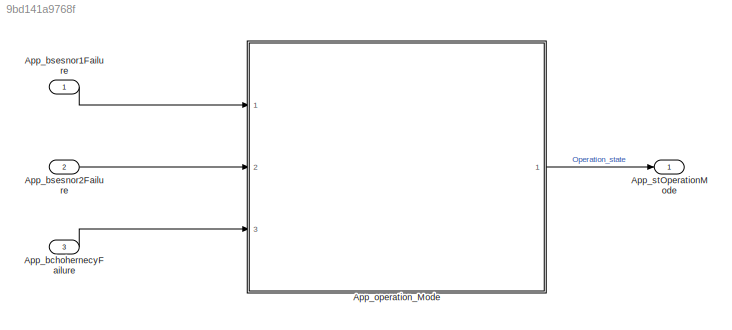
MODEL slx_9bd141a9768f
KIND model
CONFIG AbsTol = auto
CONFIG EnableMultiTasking = on
CONFIG FixedStep = 1e-3
CONFIG MaxStep = auto
CONFIG MinStep = auto
CONFIG RelTol = 1e-3
CONFIG SampleTimeConstraint = Unconstrained
CONFIG SolverName = FixedStepDiscrete
CONFIG StartTime = 0.0
CONFIG StopTime = 10.0
BLOCK [Inport] App_bchohernecyFailure
  Port = 3
BLOCK [Inport] App_bsesnor1Failure
BLOCK [Inport] App_bsesnor2Failure
  Port = 2
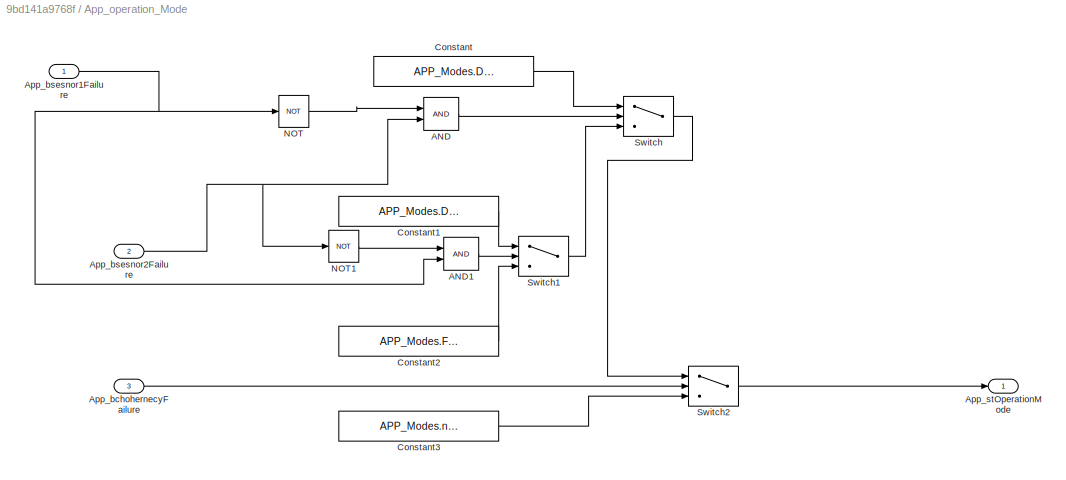
BLOCK [SubSystem] App_operation_Mode
  Ports = [3, 1]
  RequestExecContextInheritance = off
BLOCK [Logic] App_operation_Mode/AND
  AllPortsSameDT = off
  OutDataTypeStr = boolean
  Ports = [2, 1]
BLOCK [Logic] App_operation_Mode/AND1
  AllPortsSameDT = off
  OutDataTypeStr = boolean
  Ports = [2, 1]
BLOCK [Inport] App_operation_Mode/App_bchohernecyFailure
  Port = 3
BLOCK [Inport] App_operation_Mode/App_bsesnor1Failure
BLOCK [Inport] App_operation_Mode/App_bsesnor2Failure
  Port = 2
BLOCK [Outport] App_operation_Mode/App_stOperationMode
  OutDataTypeStr = Enum: APP_Modes
BLOCK [Constant] App_operation_Mode/Constant
  Value = APP_Modes.Downsensor_sens_1
BLOCK [Constant] App_operation_Mode/Constant1
  Value = APP_Modes.Downsensor_sens_2
BLOCK [Constant] App_operation_Mode/Constant2
  Value = APP_Modes.Failure
BLOCK [Constant] App_operation_Mode/Constant3
  Value = APP_Modes.normal
BLOCK [Logic] App_operation_Mode/NOT
  AllPortsSameDT = off
  Operator = NOT
  OutDataTypeStr = boolean
  Ports = [1, 1]
BLOCK [Logic] App_operation_Mode/NOT1
  AllPortsSameDT = off
  Operator = NOT
  OutDataTypeStr = boolean
  Ports = [1, 1]
BLOCK [Switch] App_operation_Mode/Switch
  Criteria = u2 ~= 0
  InputSameDT = off
  SaturateOnIntegerOverflow = off
BLOCK [Switch] App_operation_Mode/Switch1
  Criteria = u2 ~= 0
  InputSameDT = off
  SaturateOnIntegerOverflow = off
BLOCK [Switch] App_operation_Mode/Switch2
  Criteria = u2 ~= 0
  InputSameDT = off
  SaturateOnIntegerOverflow = off
BLOCK [Outport] App_stOperationMode
LINE App_bchohernecyFailure:1 -> App_operation_Mode:3
LINE App_bsesnor1Failure:1 -> App_operation_Mode:1
LINE App_bsesnor2Failure:1 -> App_operation_Mode:2
LINE App_operation_Mode/AND1:1 -> App_operation_Mode/Switch1:2
LINE App_operation_Mode/AND:1 -> App_operation_Mode/Switch:2
LINE App_operation_Mode/App_bchohernecyFailure:1 -> App_operation_Mode/Switch2:2
NET App_operation_Mode/App_bsesnor1Failure:1 -> App_operation_Mode/AND1:2, App_operation_Mode/NOT:1
NET App_operation_Mode/App_bsesnor2Failure:1 -> App_operation_Mode/AND:2, App_operation_Mode/NOT1:1
LINE App_operation_Mode/Constant1:1 -> App_operation_Mode/Switch1:1
LINE App_operation_Mode/Constant2:1 -> App_operation_Mode/Switch1:3
LINE App_operation_Mode/Constant3:1 -> App_operation_Mode/Switch2:3
LINE App_operation_Mode/Constant:1 -> App_operation_Mode/Switch:1
LINE App_operation_Mode/NOT1:1 -> App_operation_Mode/AND1:1
LINE App_operation_Mode/NOT:1 -> App_operation_Mode/AND:1
LINE App_operation_Mode/Switch1:1 -> App_operation_Mode/Switch:3
LINE App_operation_Mode/Switch2:1 -> App_operation_Mode/App_stOperationMode:1
LINE App_operation_Mode/Switch:1 -> App_operation_Mode/Switch2:1
LINE App_operation_Mode:1 -> App_stOperationMode:1
note: NET lines group one-source signal fan-out (src -> all destinations, sorted); 1:1 wires keep LINE
